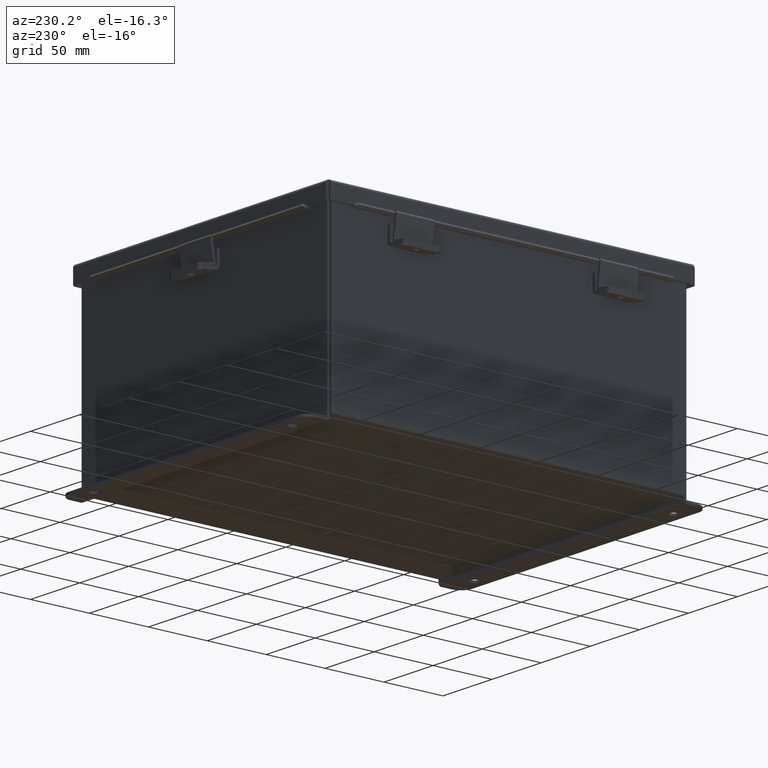
[diagram: clean part render]
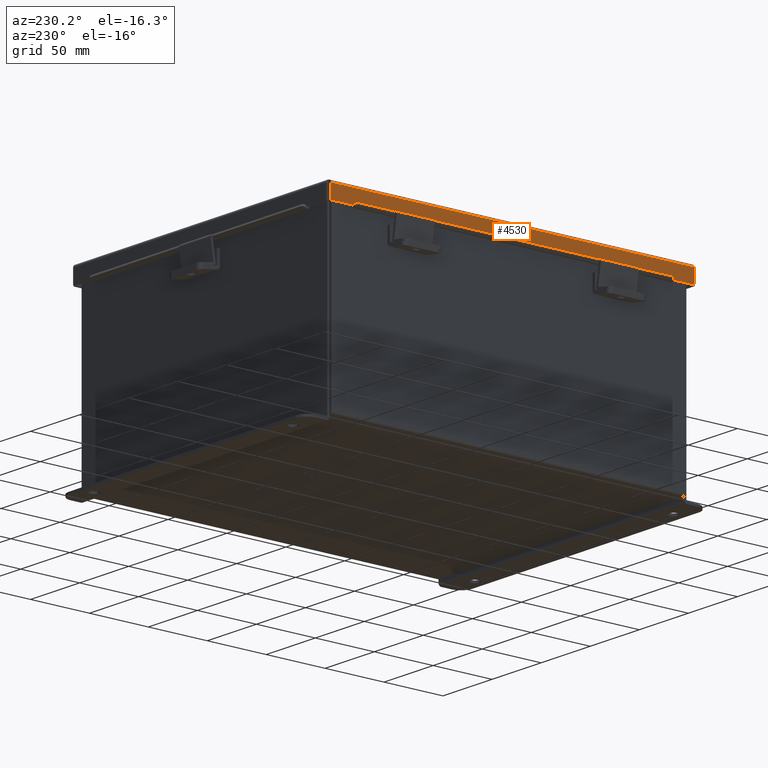
[diagram: same view with one face highlighted and labeled with its STEP entity id]
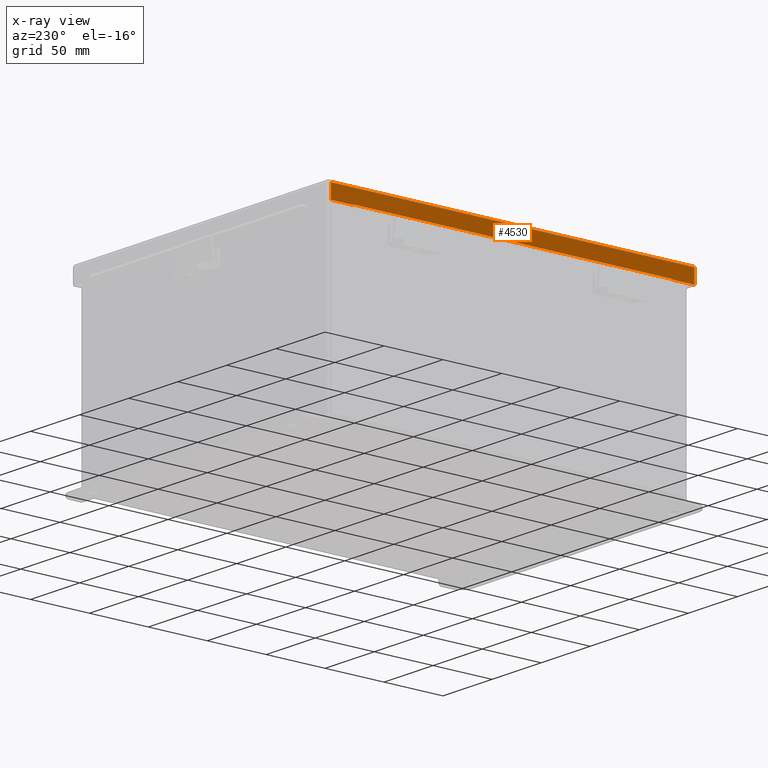
[diagram: x-ray of the same camera — body ghosted, the highlighted face saturated]
A machine part, auxiliary view. The second image highlights one B-rep face of the part: STEP entity #4530.
The next image is the same camera in x-ray: the body ghosted, the highlighted face saturated — about 0% of this face is hidden behind the body in this view.
In plain terms, the highlighted planar face has unit normal (1, -0, 0).
Its self-contained STEP definition (entity closure, byte-faithful):
#4 = AXIS2_PLACEMENT_3D ( 'NONE', #1525, #2550, #6234 ) ;
#116 = CARTESIAN_POINT ( 'NONE',  ( 5.156250000000023100, -5.324478932188125800, 0.4872999999999989000 ) ) ;
#326 = ORIENTED_EDGE ( 'NONE', *, *, #5489, .F. ) ;
#372 = LINE ( 'NONE', #7992, #7163 ) ;
#395 = EDGE_CURVE ( 'NONE', #9099, #1034, #3623, .T. ) ;
#529 = CARTESIAN_POINT ( 'NONE',  ( 5.156250000000018700, -6.156249999999989300, 0.01300000000000010700 ) ) ;
#645 = DIRECTION ( 'NONE',  ( 4.484872552701434600E-015, 1.846427556282924300E-029, 1.000000000000000000 ) ) ;
#667 = PLANE ( 'NONE',  #4 ) ;
#917 = ORIENTED_EDGE ( 'NONE', *, *, #3947, .F. ) ;
#982 = CARTESIAN_POINT ( 'NONE',  ( 5.156250000000020400, 5.324478932188145400, 0.4717115427318789300 ) ) ;
#1034 = VERTEX_POINT ( 'NONE', #4473 ) ;
#1166 = ORIENTED_EDGE ( 'NONE', *, *, #395, .F. ) ;
#1525 = CARTESIAN_POINT ( 'NONE',  ( 5.156250000000018700, 0.0000000000000000000, -2.294752314677981200E-014 ) ) ;
#1856 = VECTOR ( 'NONE', #2974, 39.37007874015748100 ) ;
#2014 = VECTOR ( 'NONE', #8386, 39.37007874015748100 ) ;
#2115 = CARTESIAN_POINT ( 'NONE',  ( 5.156250000000020400, 0.0000000000000000000, 0.4873000000000076700 ) ) ;
#2316 = ORIENTED_EDGE ( 'NONE', *, *, #3898, .T. ) ;
#2499 = LINE ( 'NONE', #5066, #2014 ) ;
#2550 = DIRECTION ( 'NONE',  ( -1.000000000000000000, -3.207704872998417900E-030, 4.484872552701433800E-015 ) ) ;
#2589 = ORIENTED_EDGE ( 'NONE', *, *, #9044, .F. ) ;
#2974 = DIRECTION ( 'NONE',  ( 4.484872552701434600E-015, 1.846427556282924300E-029, 1.000000000000000000 ) ) ;
#3187 = VECTOR ( 'NONE', #9649, 39.37007874015748100 ) ;
#3241 = VERTEX_POINT ( 'NONE', #5406 ) ;
#3356 = CARTESIAN_POINT ( 'NONE',  ( 5.156250000000020400, -5.324478932188124100, 0.4717115427318799800 ) ) ;
#3508 = VECTOR ( 'NONE', #5907, 39.37007874015748100 ) ;
#3623 = LINE ( 'NONE', #529, #3508 ) ;
#3648 = LINE ( 'NONE', #116, #3187 ) ;
#3734 = CARTESIAN_POINT ( 'NONE',  ( 5.156250000000018700, 6.074478932188145400, 0.01299999999999901400 ) ) ;
#3819 = LINE ( 'NONE', #7441, #1856 ) ;
#3898 = EDGE_CURVE ( 'NONE', #9099, #3241, #4751, .T. ) ;
#3947 = EDGE_CURVE ( 'NONE', #4925, #6485, #3648, .T. ) ;
#3966 = VECTOR ( 'NONE', #7602, 39.37007874015748100 ) ;
#4473 = CARTESIAN_POINT ( 'NONE',  ( 5.156250000000018700, -6.074478932188125800, 0.01300000000000010700 ) ) ;
#4530 = ADVANCED_FACE ( 'NONE', ( #5885 ), #667, .F. ) ;
#4670 = VECTOR ( 'NONE', #645, 39.37007874015748100 ) ;
#4751 = LINE ( 'NONE', #8879, #4670 ) ;
#4842 = EDGE_CURVE ( 'NONE', #4925, #6945, #372, .T. ) ;
#4891 = LINE ( 'NONE', #2115, #3966 ) ;
#4925 = VERTEX_POINT ( 'NONE', #6421 ) ;
#5008 = EDGE_CURVE ( 'NONE', #3241, #8776, #4891, .T. ) ;
#5066 = CARTESIAN_POINT ( 'NONE',  ( 5.156250000000022200, 5.324478932188145400, 0.4717115427318789300 ) ) ;
#5406 = CARTESIAN_POINT ( 'NONE',  ( 5.156250000000020400, 6.074478932188145400, 0.4873000000000000100 ) ) ;
#5489 = EDGE_CURVE ( 'NONE', #6485, #6791, #8225, .T. ) ;
#5738 = DIRECTION ( 'NONE',  ( -3.166671605124525800E-030, -1.000000000000000000, -1.853823127269377700E-029 ) ) ;
#5853 = EDGE_CURVE ( 'NONE', #6791, #8776, #2499, .T. ) ;
#5885 = FACE_OUTER_BOUND ( 'NONE', #8380, .T. ) ;
#5907 = DIRECTION ( 'NONE',  ( -3.166671605124525800E-030, -1.000000000000000000, -1.853823127269377700E-029 ) ) ;
#6234 = DIRECTION ( 'NONE',  ( 4.484872552701433800E-015, 1.846427556282924000E-029, 1.000000000000000000 ) ) ;
#6421 = CARTESIAN_POINT ( 'NONE',  ( 5.156250000000020400, -5.324478932188125800, 0.4873000000000000100 ) ) ;
#6485 = VERTEX_POINT ( 'NONE', #3356 ) ;
#6791 = VERTEX_POINT ( 'NONE', #982 ) ;
#6945 = VERTEX_POINT ( 'NONE', #7419 ) ;
#7125 = ORIENTED_EDGE ( 'NONE', *, *, #5853, .F. ) ;
#7163 = VECTOR ( 'NONE', #5738, 39.37007874015748100 ) ;
#7367 = DIRECTION ( 'NONE',  ( 3.166671605124525800E-030, 1.000000000000000000, 1.853823127269377700E-029 ) ) ;
#7407 = CARTESIAN_POINT ( 'NONE',  ( 5.156250000000022200, -5.324478932188125800, 0.4717115427318799800 ) ) ;
#7419 = CARTESIAN_POINT ( 'NONE',  ( 5.156250000000020400, -6.074478932188125800, 0.4873000000000000100 ) ) ;
#7441 = CARTESIAN_POINT ( 'NONE',  ( 5.156250000000018700, -6.074478932188125800, 0.0000000000000000000 ) ) ;
#7602 = DIRECTION ( 'NONE',  ( -3.166671605124525800E-030, -1.000000000000000000, -1.853823127269377700E-029 ) ) ;
#7726 = ORIENTED_EDGE ( 'NONE', *, *, #5008, .T. ) ;
#7912 = CARTESIAN_POINT ( 'NONE',  ( 5.156250000000020400, 5.324478932188144500, 0.4873000000000000100 ) ) ;
#7992 = CARTESIAN_POINT ( 'NONE',  ( 5.156250000000020400, 0.0000000000000000000, 0.4873000000000076700 ) ) ;
#8225 = LINE ( 'NONE', #7407, #8241 ) ;
#8241 = VECTOR ( 'NONE', #7367, 39.37007874015748100 ) ;
#8279 = ORIENTED_EDGE ( 'NONE', *, *, #4842, .T. ) ;
#8380 = EDGE_LOOP ( 'NONE', ( #917, #8279, #2589, #1166, #2316, #7726, #7125, #326 ) ) ;
#8386 = DIRECTION ( 'NONE',  ( 0.0000000000000000000, 1.846427556282924300E-029, 1.000000000000000000 ) ) ;
#8776 = VERTEX_POINT ( 'NONE', #7912 ) ;
#8879 = CARTESIAN_POINT ( 'NONE',  ( 5.156250000000018700, 6.074478932188145400, -2.404026234424551500E-014 ) ) ;
#9044 = EDGE_CURVE ( 'NONE', #1034, #6945, #3819, .T. ) ;
#9099 = VERTEX_POINT ( 'NONE', #3734 ) ;
#9649 = DIRECTION ( 'NONE',  ( -7.009925220120989900E-014, 7.009925220120967200E-014, -1.000000000000000000 ) ) ;